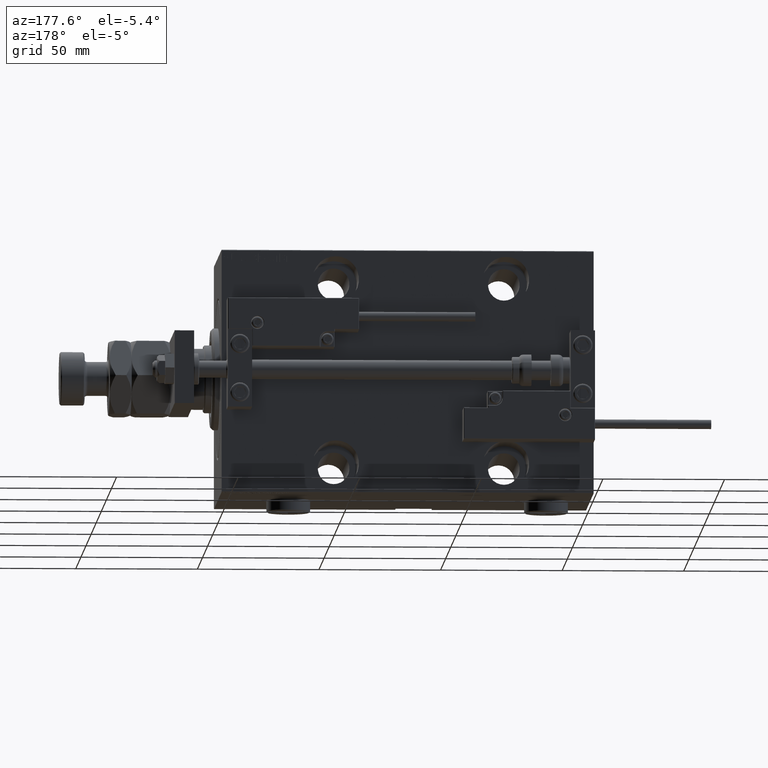
[diagram: clean part render]
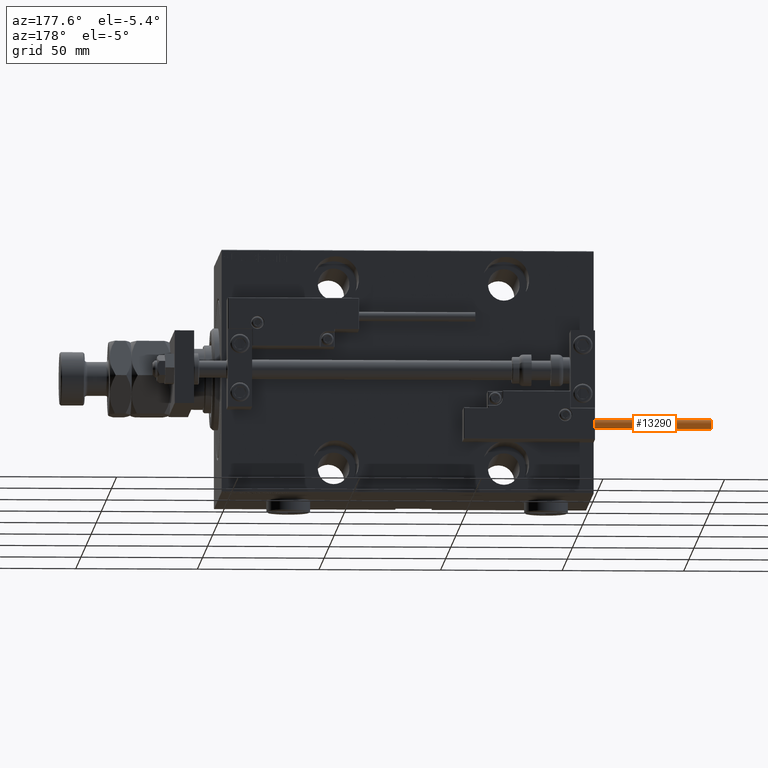
[diagram: same view with one face highlighted and labeled with its STEP entity id]
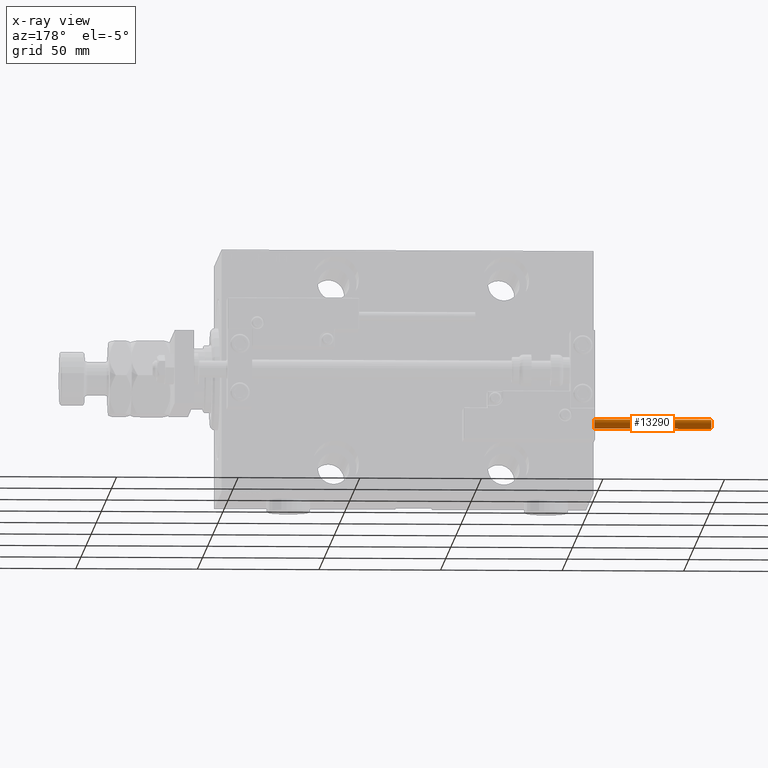
[diagram: x-ray of the same camera — body ghosted, the highlighted face saturated]
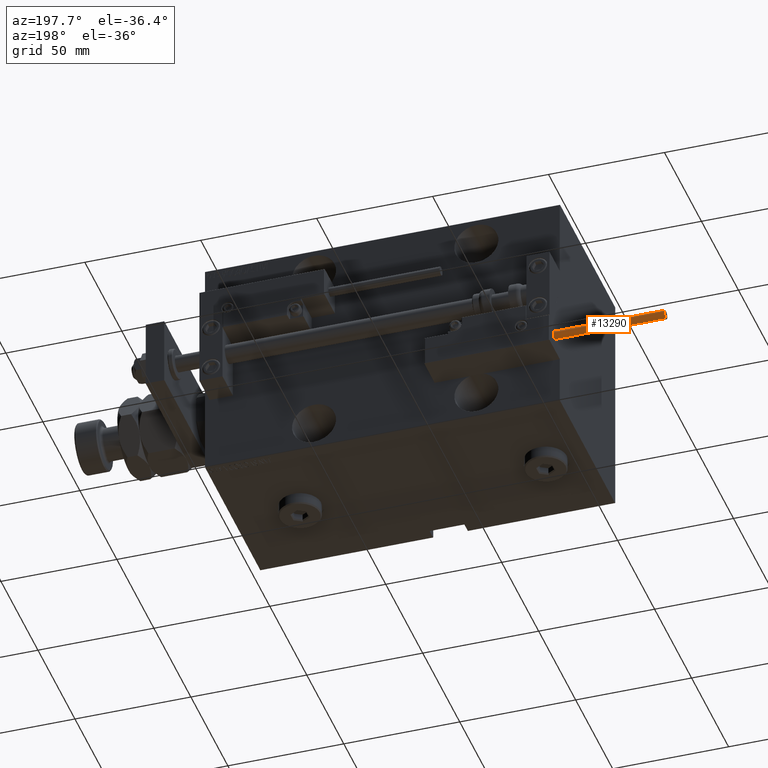
[diagram: same view with one face highlighted and labeled with its STEP entity id]
A machine part, auxiliary view. The second image highlights one B-rep face of the part: STEP entity #13290.
The next image is the same camera in x-ray: the body ghosted, the highlighted face saturated — about 0% of this face is hidden behind the body in this view.
A second angle (auxiliary view) of the same face is appended — the face is thin or edge-on in the first view.
In plain terms, the highlighted cylindrical surface (edge-blend (fillet) strip) has radius 1.9 mm, axis along (1, -0, 0).
Its self-contained STEP definition (entity closure, byte-faithful):
#288 = VECTOR ( 'NONE', #24965, 1000.000000000000000 ) ;
#444 = ORIENTED_EDGE ( 'NONE', *, *, #22410, .T. ) ;
#905 = CIRCLE ( 'NONE', #12914, 1.899999999999999467 ) ;
#1228 = EDGE_LOOP ( 'NONE', ( #50472, #444, #19091, #3596 ) ) ;
#2030 = LINE ( 'NONE', #51105, #39877 ) ;
#2116 = CYLINDRICAL_SURFACE ( 'NONE', #30270, 1.899999999999999467 ) ;
#3596 = ORIENTED_EDGE ( 'NONE', *, *, #29627, .F. ) ;
#5973 = VERTEX_POINT ( 'NONE', #34838 ) ;
#7592 = EDGE_CURVE ( 'NONE', #28964, #48536, #905, .T. ) ;
#9474 = DIRECTION ( 'NONE',  ( 0.000000000000000000, 0.000000000000000000, 1.000000000000000000 ) ) ;
#9489 = AXIS2_PLACEMENT_3D ( 'NONE', #52020, #38111, #48232 ) ;
#12914 = AXIS2_PLACEMENT_3D ( 'NONE', #26347, #9474, #34117 ) ;
#13290 = ADVANCED_FACE ( 'NONE', ( #13904 ), #2116, .T. ) ;
#13904 = FACE_OUTER_BOUND ( 'NONE', #1228, .T. ) ;
#14713 = DIRECTION ( 'NONE',  ( -1.000000000000000000, 0.000000000000000000, 0.000000000000000000 ) ) ;
#16832 = CARTESIAN_POINT ( 'NONE',  ( -1.899999999999999467, 0.000000000000000000, 48.00000000000000000 ) ) ;
#16907 = EDGE_CURVE ( 'NONE', #5973, #43011, #42007, .T. ) ;
#18450 = DIRECTION ( 'NONE',  ( -0.000000000000000000, -0.000000000000000000, -1.000000000000000000 ) ) ;
#18768 = CARTESIAN_POINT ( 'NONE',  ( -1.899999999999999467, 0.000000000000000000, 0.000000000000000000 ) ) ;
#19091 = ORIENTED_EDGE ( 'NONE', *, *, #16907, .T. ) ;
#22410 = EDGE_CURVE ( 'NONE', #28964, #5973, #41595, .T. ) ;
#22741 = CARTESIAN_POINT ( 'NONE',  ( 0.000000000000000000, 0.000000000000000000, 48.00000000000000000 ) ) ;
#24965 = DIRECTION ( 'NONE',  ( -0.000000000000000000, -0.000000000000000000, -1.000000000000000000 ) ) ;
#26347 = CARTESIAN_POINT ( 'NONE',  ( 0.000000000000000000, 0.000000000000000000, 48.00000000000000000 ) ) ;
#28964 = VERTEX_POINT ( 'NONE', #30812 ) ;
#29627 = EDGE_CURVE ( 'NONE', #48536, #43011, #2030, .T. ) ;
#30270 = AXIS2_PLACEMENT_3D ( 'NONE', #22741, #18450, #14713 ) ;
#30812 = CARTESIAN_POINT ( 'NONE',  ( 1.899999999999999467, 2.326828918379970872E-16, 48.00000000000000000 ) ) ;
#32477 = CARTESIAN_POINT ( 'NONE',  ( 1.899999999999999467, 2.326828918379970872E-16, 48.00000000000000000 ) ) ;
#34117 = DIRECTION ( 'NONE',  ( 1.000000000000000000, 0.000000000000000000, 0.000000000000000000 ) ) ;
#34838 = CARTESIAN_POINT ( 'NONE',  ( 1.899999999999999467, 2.326828918379970872E-16, 0.000000000000000000 ) ) ;
#38111 = DIRECTION ( 'NONE',  ( 0.000000000000000000, 0.000000000000000000, 1.000000000000000000 ) ) ;
#39877 = VECTOR ( 'NONE', #46512, 1000.000000000000000 ) ;
#41595 = LINE ( 'NONE', #32477, #288 ) ;
#42007 = CIRCLE ( 'NONE', #9489, 1.899999999999999467 ) ;
#43011 = VERTEX_POINT ( 'NONE', #18768 ) ;
#46512 = DIRECTION ( 'NONE',  ( -0.000000000000000000, -0.000000000000000000, -1.000000000000000000 ) ) ;
#48232 = DIRECTION ( 'NONE',  ( 1.000000000000000000, 0.000000000000000000, 0.000000000000000000 ) ) ;
#48536 = VERTEX_POINT ( 'NONE', #16832 ) ;
#50472 = ORIENTED_EDGE ( 'NONE', *, *, #7592, .F. ) ;
#51105 = CARTESIAN_POINT ( 'NONE',  ( -1.899999999999999467, 0.000000000000000000, 48.00000000000000000 ) ) ;
#52020 = CARTESIAN_POINT ( 'NONE',  ( 0.000000000000000000, 0.000000000000000000, 0.000000000000000000 ) ) ;